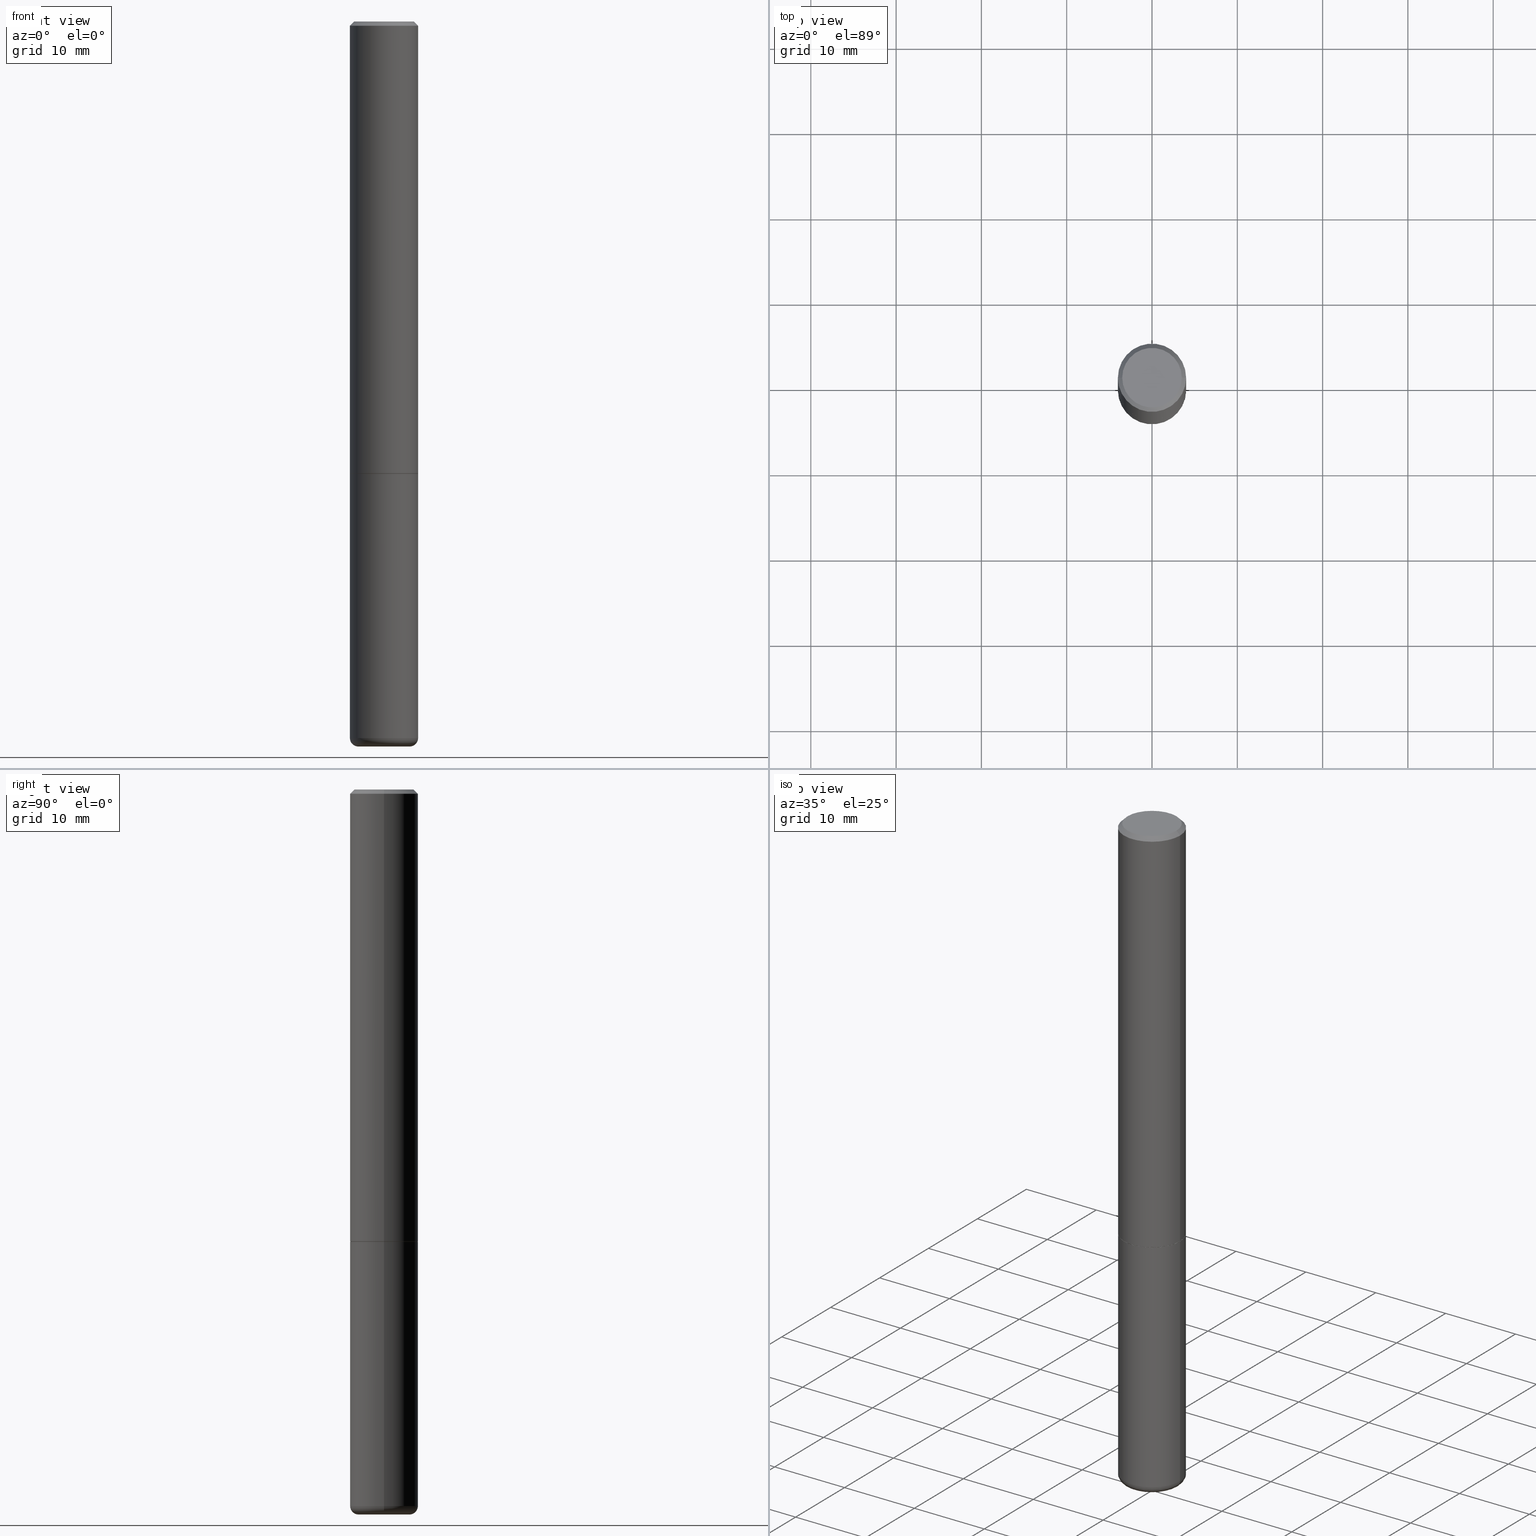
[diagram: canonical four-view strip — front | top / right | iso, engineering-drawing reading convention]
A machine part, canonical four-view strip (front | top / right | iso — engineering-drawing reading convention). The complete STEP part file that produces these views, byte-faithful:
ISO-10303-21;
HEADER;
FILE_DESCRIPTION (( 'STEP AP203' ),
    '1' );
FILE_NAME ('74391.STEP',
    '2024-03-06T15:10:48',
    ( '' ),
    ( '' ),
    'SwSTEP 2.0',
    'SolidWorks 2023',
    '' );
FILE_SCHEMA (( 'CONFIG_CONTROL_DESIGN' ));
ENDSEC;

DATA;
#1 = ADVANCED_FACE ( 'NONE', ( #29 ), #348, .T. ) ;
#2 = DIRECTION ( 'NONE',  ( -2.445468806185136597E-29, 3.491481338843145583E-15, 1.000000000000000000 ) ) ;
#3 = CONICAL_SURFACE ( 'NONE', #54, 0.1575000000000000289, 0.7853981633974481680 ) ;
#4 = COORDINATED_UNIVERSAL_TIME_OFFSET ( 5, 0, .BEHIND. ) ;
#5 = CARTESIAN_POINT ( 'NONE',  ( -0.1575000000000000289, 1.029986994958724182E-15, -0.02000000000000003511 ) ) ;
#6 = VECTOR ( 'NONE', #38, 39.37007874015748143 ) ;
#7 = APPROVAL_DATE_TIME ( #263, #326 ) ;
#8 = DIRECTION ( 'NONE',  ( -1.000000000000000000, 6.982962677686265922E-15, -4.876176775795935793E-29 ) ) ;
#9 = ADVANCED_FACE ( 'NONE', ( #256 ), #284, .T. ) ;
#10 = CARTESIAN_POINT ( 'NONE',  ( 9.601573681818600950E-16, 0.1374999999999997891, -3.797686405735721404E-16 ) ) ;
#11 = MECHANICAL_CONTEXT ( 'NONE', #385, 'mechanical' ) ;
#12 = CARTESIAN_POINT ( 'NONE',  ( 0.1575000000000000289, -1.150358061425879472E-15, -0.02000000000000003511 ) ) ;
#13 = DIRECTION ( 'NONE',  ( -2.445468806185136597E-29, 3.491481338843145583E-15, 1.000000000000000000 ) ) ;
#14 = COORDINATED_UNIVERSAL_TIME_OFFSET ( 5, 0, .BEHIND. ) ;
#15 = CARTESIAN_POINT ( 'NONE',  ( 0.1575000000000001954, -8.381999250160736190E-15, -2.085699999999999665 ) ) ;
#16 = APPLICATION_PROTOCOL_DEFINITION ( 'international standard', 'config_control_design', 1994, #385 ) ;
#17 = EDGE_CURVE ( 'NONE', #414, #34, #158, .T. ) ;
#18 = CC_DESIGN_APPROVAL ( #267, ( #135 ) ) ;
#19 = ORIENTED_EDGE ( 'NONE', *, *, #357, .F. ) ;
#20 = EDGE_CURVE ( 'NONE', #52, #154, #191, .T. ) ;
#21 = CARTESIAN_POINT ( 'NONE',  ( -4.906101647375532782E-45, 7.004612900788102525E-31, 2.006200870347193393E-16 ) ) ;
#22 = SHAPE_DEFINITION_REPRESENTATION ( #148, #319 ) ;
#23 = DIRECTION ( 'NONE',  ( -2.438088387897960049E-29, 3.491481338843145188E-15, 1.000000000000000000 ) ) ;
#24 = AXIS2_PLACEMENT_3D ( 'NONE', #292, #13, #132 ) ;
#25 = FACE_OUTER_BOUND ( 'NONE', #48, .T. ) ;
#26 = CIRCLE ( 'NONE', #69, 0.1565000000000000002 ) ;
#27 = VERTEX_POINT ( 'NONE', #64 ) ;
#28 = CARTESIAN_POINT ( 'NONE',  ( -0.1575000000000000011, -8.297071213903919899E-15, -2.086699999999999999 ) ) ;
#29 = FACE_OUTER_BOUND ( 'NONE', #384, .T. ) ;
#30 = ORIENTED_EDGE ( 'NONE', *, *, #62, .T. ) ;
#31 = LOCAL_TIME ( 10, 10, 48.00000000000000000, #334 ) ;
#32 = ORIENTED_EDGE ( 'NONE', *, *, #360, .F. ) ;
#33 = ADVANCED_FACE ( 'NONE', ( #72 ), #167, .T. ) ;
#34 = VERTEX_POINT ( 'NONE', #316 ) ;
#35 = DIRECTION ( 'NONE',  ( -6.982962677686266711E-15, -1.000000000000000000, 3.491481338843145583E-15 ) ) ;
#36 = CIRCLE ( 'NONE', #221, 0.1575000000000000011 ) ;
#37 = EDGE_CURVE ( 'NONE', #92, #336, #63, .T. ) ;
#38 = DIRECTION ( 'NONE',  ( -2.445468806185136877E-29, 3.491481338843145188E-15, 1.000000000000000000 ) ) ;
#39 = APPLICATION_PROTOCOL_DEFINITION ( 'international standard', 'config_control_design', 1994, #353 ) ;
#40 = LENGTH_MEASURE_WITH_UNIT ( LENGTH_MEASURE( 0.02539999999999999897 ), #229 );
#41 = CARTESIAN_POINT ( 'NONE',  ( -0.1575000000000000289, 1.029986994958724182E-15, -0.02000000000000003511 ) ) ;
#42 = PERSON_AND_ORGANIZATION_ROLE ( 'design_owner' ) ;
#43 = FACE_OUTER_BOUND ( 'NONE', #317, .T. ) ;
#44 = DIRECTION ( 'NONE',  ( 7.105427357601001859E-15, 1.000000000000000000, -3.491481338843145583E-15 ) ) ;
#45 = EDGE_CURVE ( 'NONE', #336, #34, #110, .T. ) ;
#46 = CARTESIAN_POINT ( 'NONE',  ( -0.1180999999999999966, -1.070752696475548667E-14, -3.307099999999999707 ) ) ;
#47 = AXIS2_PLACEMENT_3D ( 'NONE', #264, #170, #8 ) ;
#48 = EDGE_LOOP ( 'NONE', ( #160, #83, #415, #211 ) ) ;
#49 = APPROVAL_DATE_TIME ( #304, #320 ) ;
#50 = FACE_OUTER_BOUND ( 'NONE', #203, .T. ) ;
#51 = LINE ( 'NONE', #268, #181 ) ;
#52 = VERTEX_POINT ( 'NONE', #82 ) ;
#53 = ORIENTED_EDGE ( 'NONE', *, *, #45, .F. ) ;
#54 = AXIS2_PLACEMENT_3D ( 'NONE', #398, #397, #105 ) ;
#55 = FACE_OUTER_BOUND ( 'NONE', #300, .T. ) ;
#56 = APPROVAL_PERSON_ORGANIZATION ( #195, #267, #70 ) ;
#57 = CC_DESIGN_PERSON_AND_ORGANIZATION_ASSIGNMENT ( #332, #330, ( #159 ) ) ;
#58 = ORIENTED_EDGE ( 'NONE', *, *, #153, .T. ) ;
#59 = ORIENTED_EDGE ( 'NONE', *, *, #37, .F. ) ;
#60 = CARTESIAN_POINT ( 'NONE',  ( 0.000000000000000000, 0.000000000000000000, 0.000000000000000000 ) ) ;
#61 = CIRCLE ( 'NONE', #349, 0.1575000000000001954 ) ;
#62 = EDGE_CURVE ( 'NONE', #336, #92, #393, .T. ) ;
#63 = CIRCLE ( 'NONE', #416, 0.1180999999999999966 ) ;
#64 = CARTESIAN_POINT ( 'NONE',  ( -0.1374999999999997891, 9.950721815702925329E-16, 2.006200870347125108E-16 ) ) ;
#65 = VERTEX_POINT ( 'NONE', #412 ) ;
#66 = DIRECTION ( 'NONE',  ( 1.000000000000000000, -6.982962677686273021E-15, 0.000000000000000000 ) ) ;
#67 = DIRECTION ( 'NONE',  ( 1.000000000000000000, 0.000000000000000000, 0.000000000000000000 ) ) ;
#68 = ADVANCED_FACE ( 'NONE', ( #25 ), #78, .T. ) ;
#69 = AXIS2_PLACEMENT_3D ( 'NONE', #371, #136, #391 ) ;
#70 = APPROVAL_ROLE ( '' ) ;
#71 = LINE ( 'NONE', #287, #359 ) ;
#72 = FACE_OUTER_BOUND ( 'NONE', #217, .T. ) ;
#73 = DIRECTION ( 'NONE',  ( 1.000000000000000000, -6.982962677686265922E-15, 0.000000000000000000 ) ) ;
#74 = CYLINDRICAL_SURFACE ( 'NONE', #231, 0.1575000000000000844 ) ;
#75 = CARTESIAN_POINT ( 'NONE',  ( 0.1180999999999999966, -1.237136582792291392E-14, -3.307099999999999707 ) ) ;
#76 = CC_DESIGN_DATE_AND_TIME_ASSIGNMENT ( #100, #227, ( #288 ) ) ;
#77 = DIRECTION ( 'NONE',  ( -1.000000000000000000, 6.982962677686267499E-15, 0.000000000000000000 ) ) ;
#78 = CONICAL_SURFACE ( 'NONE', #408, 0.1565000000000000002, 0.7853981633975165577 ) ;
#79 = LINE ( 'NONE', #228, #314 ) ;
#80 = COORDINATED_UNIVERSAL_TIME_OFFSET ( 5, 0, .BEHIND. ) ;
#81 = AXIS2_PLACEMENT_3D ( 'NONE', #323, #395, #107 ) ;
#82 = CARTESIAN_POINT ( 'NONE',  ( -0.1575000000000001954, -2.556901318778844062E-15, -2.085699999999999665 ) ) ;
#83 = ORIENTED_EDGE ( 'NONE', *, *, #309, .T. ) ;
#84 = DIRECTION ( 'NONE',  ( -2.445468806185136597E-29, 3.491481338843145583E-15, 1.000000000000000000 ) ) ;
#85 = DIRECTION ( 'NONE',  ( -2.445468806185136597E-29, 3.491481338843145583E-15, 1.000000000000000000 ) ) ;
#86 = ORIENTED_EDGE ( 'NONE', *, *, #142, .T. ) ;
#87 = CARTESIAN_POINT ( 'NONE',  ( 8.183761359898558662E-29, -1.168424230043858487E-14, -3.346499999999999364 ) ) ;
#88 = EDGE_CURVE ( 'NONE', #208, #182, #164, .T. ) ;
#89 = ORIENTED_EDGE ( 'NONE', *, *, #88, .F. ) ;
#90 = AXIS2_PLACEMENT_3D ( 'NONE', #328, #234, #362 ) ;
#91 =( GEOMETRIC_REPRESENTATION_CONTEXT ( 3 ) GLOBAL_UNCERTAINTY_ASSIGNED_CONTEXT ( ( #346 ) ) GLOBAL_UNIT_ASSIGNED_CONTEXT ( ( #290, #318, #226 ) ) REPRESENTATION_CONTEXT ( 'NONE', 'WORKASPACE' ) );
#92 = VERTEX_POINT ( 'NONE', #372 ) ;
#93 = EDGE_CURVE ( 'NONE', #182, #208, #118, .T. ) ;
#94 = EDGE_LOOP ( 'NONE', ( #411, #386, #418, #250 ) ) ;
#95 = VERTEX_POINT ( 'NONE', #177 ) ;
#96 = APPROVAL_ROLE ( '' ) ;
#97 = PERSON_AND_ORGANIZATION_ROLE ( 'creator' ) ;
#98 = DATE_AND_TIME ( #259, #402 ) ;
#99 = EDGE_CURVE ( 'NONE', #34, #414, #36, .T. ) ;
#100 = DATE_AND_TIME ( #361, #238 ) ;
#101 = DIRECTION ( 'NONE',  ( 0.7071067811865473507, -7.319954787623254468E-15, -0.7071067811865475727 ) ) ;
#102 = AXIS2_PLACEMENT_3D ( 'NONE', #194, #324, #67 ) ;
#103 = CARTESIAN_POINT ( 'NONE',  ( 8.183761359898558662E-29, -1.168424230043858487E-14, -3.346499999999999364 ) ) ;
#104 = FACE_OUTER_BOUND ( 'NONE', #275, .T. ) ;
#105 = DIRECTION ( 'NONE',  ( -1.000000000000000000, 6.982962677686267499E-15, 0.000000000000000000 ) ) ;
#106 = ADVANCED_FACE ( 'NONE', ( #55 ), #295, .T. ) ;
#107 = DIRECTION ( 'NONE',  ( 1.000000000000000000, -6.982962677686267499E-15, 4.874794762600771100E-29 ) ) ;
#108 = CARTESIAN_POINT ( 'NONE',  ( 0.1374999999999997891, -1.046838268059731505E-15, 2.006200870347263405E-16 ) ) ;
#109 = DIRECTION ( 'NONE',  ( -0.7071067811865957564, 7.493145998870527710E-15, 0.7071067811864992780 ) ) ;
#110 = CIRCLE ( 'NONE', #306, 0.03939999999999978936 ) ;
#111 = DIRECTION ( 'NONE',  ( -0.7071067811865473507, 2.468850131082255483E-15, -0.7071067811865475727 ) ) ;
#112 = AXIS2_PLACEMENT_3D ( 'NONE', #10, #260, #265 ) ;
#113 = CARTESIAN_POINT ( 'NONE',  ( 8.087409888934865187E-29, -1.154667793568816566E-14, -3.307099999999999707 ) ) ;
#114 = CALENDAR_DATE ( 2024, 6, 3 ) ;
#115 = DIRECTION ( 'NONE',  ( -2.445468806185136877E-29, 3.491481338843145188E-15, 1.000000000000000000 ) ) ;
#116 = DIRECTION ( 'NONE',  ( -2.445468806185136597E-29, 3.491481338843145583E-15, 1.000000000000000000 ) ) ;
#117 = PERSON_AND_ORGANIZATION_ROLE ( 'creator' ) ;
#118 = CIRCLE ( 'NONE', #298, 0.1575000000000000289 ) ;
#119 = AXIS2_PLACEMENT_3D ( 'NONE', #175, #146, #301 ) ;
#120 = ORIENTED_EDGE ( 'NONE', *, *, #329, .T. ) ;
#121 = VECTOR ( 'NONE', #115, 39.37007874015748143 ) ;
#122 = CARTESIAN_POINT ( 'NONE',  ( 5.102959757866523939E-29, -7.285674109763990928E-15, -2.086699999999999999 ) ) ;
#123 = VERTEX_POINT ( 'NONE', #28 ) ;
#124 = CC_DESIGN_PERSON_AND_ORGANIZATION_ASSIGNMENT ( #202, #337, ( #135 ) ) ;
#125 = DIRECTION ( 'NONE',  ( 1.000000000000000000, -6.982962677686267499E-15, 0.000000000000000000 ) ) ;
#126 = ORIENTED_EDGE ( 'NONE', *, *, #224, .F. ) ;
#127 = DIRECTION ( 'NONE',  ( 1.000000000000000000, -6.982962677686273021E-15, 0.000000000000000000 ) ) ;
#128 = ORIENTED_EDGE ( 'NONE', *, *, #99, .T. ) ;
#129 = CC_DESIGN_SECURITY_CLASSIFICATION ( #159, ( #135 ) ) ;
#130 = ORIENTED_EDGE ( 'NONE', *, *, #369, .F. ) ;
#131 = ORIENTED_EDGE ( 'NONE', *, *, #142, .F. ) ;
#132 = DIRECTION ( 'NONE',  ( 1.000000000000000000, -6.982962677686265922E-15, 4.876176775795935232E-29 ) ) ;
#133 = DIRECTION ( 'NONE',  ( 1.000000000000000000, -6.982962677686265922E-15, 4.876176775795935232E-29 ) ) ;
#134 = AXIS2_PLACEMENT_3D ( 'NONE', #322, #266, #166 ) ;
#135 = PRODUCT_DEFINITION_FORMATION_WITH_SPECIFIED_SOURCE ( 'ANY', '', #201, .NOT_KNOWN. ) ;
#136 = DIRECTION ( 'NONE',  ( -2.445468806185136597E-29, 3.491481338843145583E-15, 1.000000000000000000 ) ) ;
#137 = CC_DESIGN_PERSON_AND_ORGANIZATION_ASSIGNMENT ( #257, #97, ( #288 ) ) ;
#138 = PLANE ( 'NONE',  #112 ) ;
#139 = FACE_OUTER_BOUND ( 'NONE', #345, .T. ) ;
#140 = CARTESIAN_POINT ( 'NONE',  ( 0.1575000000000000844, -1.099816621735587677E-15, 7.679978421878603638E-30 ) ) ;
#141 = AXIS2_PLACEMENT_3D ( 'NONE', #308, #350, #183 ) ;
#142 = EDGE_CURVE ( 'NONE', #52, #182, #71, .T. ) ;
#143 = CALENDAR_DATE ( 2024, 6, 3 ) ;
#144 = CARTESIAN_POINT ( 'NONE',  ( -0.1565000000000000002, -6.168376273951211931E-15, -2.086699999999999999 ) ) ;
#145 = DIRECTION ( 'NONE',  ( -2.445468806185136597E-29, 3.491481338843145583E-15, 1.000000000000000000 ) ) ;
#146 = DIRECTION ( 'NONE',  ( -2.445468806185136597E-29, 3.491481338843145583E-15, 1.000000000000000000 ) ) ;
#147 = CARTESIAN_POINT ( 'NONE',  ( 0.1565000000000000002, -8.378507768821891605E-15, -2.086699999999999999 ) ) ;
#148 = PRODUCT_DEFINITION_SHAPE ( 'NONE', 'NONE',  #288 ) ;
#149 = CIRCLE ( 'NONE', #270, 0.1575000000000000011 ) ;
#150 = CARTESIAN_POINT ( 'NONE',  ( 5.102959757866523939E-29, -7.285674109763990928E-15, -2.086699999999999999 ) ) ;
#151 = ORIENTED_EDGE ( 'NONE', *, *, #224, .T. ) ;
#152 = AXIS2_PLACEMENT_3D ( 'NONE', #389, #2, #161 ) ;
#153 = EDGE_CURVE ( 'NONE', #277, #208, #79, .T. ) ;
#154 = VERTEX_POINT ( 'NONE', #15 ) ;
#155 = CARTESIAN_POINT ( 'NONE',  ( 8.087409888934865187E-29, -1.154667793568816566E-14, -3.307099999999999707 ) ) ;
#156 = ORIENTED_EDGE ( 'NONE', *, *, #296, .T. ) ;
#157 = ORIENTED_EDGE ( 'NONE', *, *, #413, .F. ) ;
#158 = CIRCLE ( 'NONE', #262, 0.1575000000000000011 ) ;
#159 = SECURITY_CLASSIFICATION ( '', '', #239 ) ;
#160 = ORIENTED_EDGE ( 'NONE', *, *, #252, .T. ) ;
#161 = DIRECTION ( 'NONE',  ( 1.000000000000000000, -6.982962677686267499E-15, 4.876176775795936353E-29 ) ) ;
#162 = DIRECTION ( 'NONE',  ( -2.445468806185136597E-29, 3.491481338843145583E-15, 1.000000000000000000 ) ) ;
#163 = CC_DESIGN_PERSON_AND_ORGANIZATION_ASSIGNMENT ( #406, #117, ( #135 ) ) ;
#164 = CIRCLE ( 'NONE', #400, 0.1575000000000000289 ) ;
#165 = AXIS2_PLACEMENT_3D ( 'NONE', #21, #274, #410 ) ;
#166 = DIRECTION ( 'NONE',  ( -1.000000000000000000, 6.982962677686265922E-15, -4.876176775795935793E-29 ) ) ;
#167 = CYLINDRICAL_SURFACE ( 'NONE', #24, 0.1575000000000000011 ) ;
#168 = ADVANCED_FACE ( 'NONE', ( #139 ), #74, .T. ) ;
#169 = PERSON_AND_ORGANIZATION ( #401, #307 ) ;
#170 = DIRECTION ( 'NONE',  ( 2.438088387897960049E-29, -3.491481338843145188E-15, -1.000000000000000000 ) ) ;
#171 = CONICAL_SURFACE ( 'NONE', #119, 0.1565000000000000002, 0.7853981633975165577 ) ;
#172 = PLANE ( 'NONE',  #134 ) ;
#173 = DIRECTION ( 'NONE',  ( 1.000000000000000000, -6.982962677686271444E-15, 4.883557194083114583E-29 ) ) ;
#174 = DATE_TIME_ROLE ( 'classification_date' ) ;
#175 = CARTESIAN_POINT ( 'NONE',  ( 5.102959757866523939E-29, -7.285674109763990928E-15, -2.086699999999999999 ) ) ;
#176 = EDGE_LOOP ( 'NONE', ( #131, #185, #151, #341 ) ) ;
#177 = CARTESIAN_POINT ( 'NONE',  ( 0.1565000000000000002, -8.378507768821891605E-15, -2.086699999999999999 ) ) ;
#178 = APPROVAL_ROLE ( '' ) ;
#179 = EDGE_CURVE ( 'NONE', #154, #52, #61, .T. ) ;
#180 = CARTESIAN_POINT ( 'NONE',  ( 0.1575000000000000011, -1.099816621735586889E-15, 7.679978421878598033E-30 ) ) ;
#181 = VECTOR ( 'NONE', #109, 39.37007874015748143 ) ;
#182 = VERTEX_POINT ( 'NONE', #41 ) ;
#183 = DIRECTION ( 'NONE',  ( 1.000000000000000000, -6.982962677686265922E-15, 0.000000000000000000 ) ) ;
#184 = ORIENTED_EDGE ( 'NONE', *, *, #279, .T. ) ;
#185 = ORIENTED_EDGE ( 'NONE', *, *, #20, .T. ) ;
#186 = DIRECTION ( 'NONE',  ( 1.000000000000000000, -6.982962677686261977E-15, 0.000000000000000000 ) ) ;
#187 = DIRECTION ( 'NONE',  ( -2.445468806185136597E-29, 3.491481338843145583E-15, 1.000000000000000000 ) ) ;
#188 = CC_DESIGN_APPROVAL ( #320, ( #159 ) ) ;
#189 = ORIENTED_EDGE ( 'NONE', *, *, #357, .T. ) ;
#190 = ADVANCED_FACE ( 'NONE', ( #43 ), #392, .T. ) ;
#191 = CIRCLE ( 'NONE', #141, 0.1575000000000001954 ) ;
#192 = AXIS2_PLACEMENT_3D ( 'NONE', #363, #327, #77 ) ;
#193 = FACE_OUTER_BOUND ( 'NONE', #278, .T. ) ;
#194 = CARTESIAN_POINT ( 'NONE',  ( 0.000000000000000000, 0.000000000000000000, 0.000000000000000000 ) ) ;
#195 = PERSON_AND_ORGANIZATION ( #401, #307 ) ;
#196 = AXIS2_PLACEMENT_3D ( 'NONE', #60, #187, #133 ) ;
#197 = AXIS2_PLACEMENT_3D ( 'NONE', #150, #273, #271 ) ;
#198 = DIRECTION ( 'NONE',  ( -2.445468806185136877E-29, 3.491481338843145188E-15, 1.000000000000000000 ) ) ;
#199 = LINE ( 'NONE', #147, #276 ) ;
#200 = ADVANCED_FACE ( 'NONE', ( #193 ), #172, .F. ) ;
#201 = PRODUCT ( '74391', '74391', '', ( #11 ) ) ;
#202 = PERSON_AND_ORGANIZATION ( #401, #307 ) ;
#203 = EDGE_LOOP ( 'NONE', ( #310, #280, #156, #222 ) ) ;
#204 = CALENDAR_DATE ( 2024, 6, 3 ) ;
#205 = FACE_OUTER_BOUND ( 'NONE', #313, .T. ) ;
#206 = VECTOR ( 'NONE', #198, 39.37007874015748143 ) ;
#207 = LOCAL_TIME ( 10, 10, 48.00000000000000000, #14 ) ;
#208 = VERTEX_POINT ( 'NONE', #12 ) ;
#209 = CC_DESIGN_PERSON_AND_ORGANIZATION_ASSIGNMENT ( #286, #42, ( #201 ) ) ;
#210 = DIRECTION ( 'NONE',  ( 1.000000000000000000, -6.982962677686267499E-15, 0.000000000000000000 ) ) ;
#211 = ORIENTED_EDGE ( 'NONE', *, *, #296, .F. ) ;
#212 = DIRECTION ( 'NONE',  ( -2.445468806185136597E-29, 3.491481338843145583E-15, 1.000000000000000000 ) ) ;
#213 = CARTESIAN_POINT ( 'NONE',  ( 0.1180999999999999966, -1.250893019267333313E-14, -3.346499999999999364 ) ) ;
#214 = ORIENTED_EDGE ( 'NONE', *, *, #360, .T. ) ;
#215 = CARTESIAN_POINT ( 'NONE',  ( 4.890937612370281041E-31, -6.982962677686302702E-17, -0.02000000000000003511 ) ) ;
#216 = AXIS2_PLACEMENT_3D ( 'NONE', #331, #23, #335 ) ;
#217 = EDGE_LOOP ( 'NONE', ( #130, #248, #120, #32 ) ) ;
#218 = CARTESIAN_POINT ( 'NONE',  ( 4.890937612370281041E-31, -6.982962677686302702E-17, -0.02000000000000003511 ) ) ;
#219 = ORIENTED_EDGE ( 'NONE', *, *, #252, .F. ) ;
#220 = ORIENTED_EDGE ( 'NONE', *, *, #62, .F. ) ;
#221 = AXIS2_PLACEMENT_3D ( 'NONE', #303, #247, #379 ) ;
#222 = ORIENTED_EDGE ( 'NONE', *, *, #20, .F. ) ;
#223 = CC_DESIGN_APPROVAL ( #326, ( #288 ) ) ;
#224 = EDGE_CURVE ( 'NONE', #154, #208, #364, .T. ) ;
#225 = DIRECTION ( 'NONE',  ( -2.445468806185136597E-29, 3.491481338843145583E-15, 1.000000000000000000 ) ) ;
#226 =( NAMED_UNIT ( * ) SI_UNIT ( $, .STERADIAN. ) SOLID_ANGLE_UNIT ( ) );
#227 = DATE_TIME_ROLE ( 'creation_date' ) ;
#228 = CARTESIAN_POINT ( 'NONE',  ( 0.1575000000000000289, -1.150358061425879472E-15, -0.02000000000000003511 ) ) ;
#229 =( LENGTH_UNIT ( ) NAMED_UNIT ( * ) SI_UNIT ( $, .METRE. ) );
#230 = DIRECTION ( 'NONE',  ( 1.000000000000000000, -6.982962677686267499E-15, 4.876176775795936353E-29 ) ) ;
#231 = AXIS2_PLACEMENT_3D ( 'NONE', #356, #236, #230 ) ;
#232 = VECTOR ( 'NONE', #111, 39.37007874015748854 ) ;
#233 = CARTESIAN_POINT ( 'NONE',  ( 5.100514289060338336E-29, -7.282182628425147921E-15, -2.085699999999999665 ) ) ;
#234 = DIRECTION ( 'NONE',  ( -2.445468806185136597E-29, 3.491481338843145583E-15, 1.000000000000000000 ) ) ;
#235 = FACE_OUTER_BOUND ( 'NONE', #251, .T. ) ;
#236 = DIRECTION ( 'NONE',  ( -2.445468806185136597E-29, 3.491481338843145583E-15, 1.000000000000000000 ) ) ;
#237 = ADVANCED_FACE ( 'NONE', ( #261 ), #3, .T. ) ;
#238 = LOCAL_TIME ( 10, 10, 48.00000000000000000, #396 ) ;
#239 = SECURITY_CLASSIFICATION_LEVEL ( 'unclassified' ) ;
#240 = CARTESIAN_POINT ( 'NONE',  ( 8.087409888934865187E-29, -1.154667793568816566E-14, -3.307099999999999707 ) ) ;
#241 = DIMENSIONAL_EXPONENTS ( 1.000000000000000000, 0.000000000000000000, 0.000000000000000000, 0.000000000000000000, 0.000000000000000000, 0.000000000000000000, 0.000000000000000000 ) ;
#242 = PERSON_AND_ORGANIZATION ( #401, #307 ) ;
#243 = ORIENTED_EDGE ( 'NONE', *, *, #282, .F. ) ;
#244 = DIRECTION ( 'NONE',  ( 1.000000000000000000, -6.982962677686268288E-15, 0.000000000000000000 ) ) ;
#245 = DESIGN_CONTEXT ( 'detailed design', #353, 'design' ) ;
#246 = ORIENTED_EDGE ( 'NONE', *, *, #99, .F. ) ;
#247 = DIRECTION ( 'NONE',  ( -2.445468806185136597E-29, 3.491481338843145583E-15, 1.000000000000000000 ) ) ;
#248 = ORIENTED_EDGE ( 'NONE', *, *, #17, .T. ) ;
#249 = PRODUCT_RELATED_PRODUCT_CATEGORY ( 'detail', '', ( #201 ) ) ;
#250 = ORIENTED_EDGE ( 'NONE', *, *, #17, .F. ) ;
#251 = EDGE_LOOP ( 'NONE', ( #315, #19, #302, #253 ) ) ;
#252 = EDGE_CURVE ( 'NONE', #95, #380, #269, .T. ) ;
#253 = ORIENTED_EDGE ( 'NONE', *, *, #93, .T. ) ;
#254 = MANIFOLD_SOLID_BREP ( 'Body-Move/Copy2[1]', #294 ) ;
#255 = AXIS2_PLACEMENT_3D ( 'NONE', #87, #162, #127 ) ;
#256 = FACE_OUTER_BOUND ( 'NONE', #176, .T. ) ;
#257 = PERSON_AND_ORGANIZATION ( #401, #307 ) ;
#258 = DIRECTION ( 'NONE',  ( 1.000000000000000000, -6.982962677686271444E-15, 4.883557194083114583E-29 ) ) ;
#259 = CALENDAR_DATE ( 2024, 6, 3 ) ;
#260 = DIRECTION ( 'NONE',  ( 2.438088387897960049E-29, -3.491481338843145188E-15, -1.000000000000000000 ) ) ;
#261 = FACE_OUTER_BOUND ( 'NONE', #417, .T. ) ;
#262 = AXIS2_PLACEMENT_3D ( 'NONE', #113, #85, #186 ) ;
#263 = DATE_AND_TIME ( #143, #207 ) ;
#264 = CARTESIAN_POINT ( 'NONE',  ( 1.899479400543291086E-28, 3.797771773731543077E-15, -3.346499999999999808 ) ) ;
#265 = DIRECTION ( 'NONE',  ( -1.000000000000000000, 6.982962677686265922E-15, -4.876176775795935793E-29 ) ) ;
#266 = DIRECTION ( 'NONE',  ( 2.438088387897960049E-29, -3.491481338843145188E-15, -1.000000000000000000 ) ) ;
#267 = APPROVAL ( #358, 'UNSPECIFIED' ) ;
#268 = CARTESIAN_POINT ( 'NONE',  ( -0.1565000000000000002, -6.173674728299434333E-15, -2.086699999999999999 ) ) ;
#269 = CIRCLE ( 'NONE', #90, 0.1565000000000000002 ) ;
#270 = AXIS2_PLACEMENT_3D ( 'NONE', #122, #84, #244 ) ;
#271 = DIRECTION ( 'NONE',  ( 1.000000000000000000, -6.982962677686268288E-15, 0.000000000000000000 ) ) ;
#272 = APPROVAL_DATE_TIME ( #98, #267 ) ;
#273 = DIRECTION ( 'NONE',  ( -2.445468806185136597E-29, 3.491481338843145583E-15, 1.000000000000000000 ) ) ;
#274 = DIRECTION ( 'NONE',  ( -2.445468806185136597E-29, 3.491481338843145583E-15, 1.000000000000000000 ) ) ;
#275 = EDGE_LOOP ( 'NONE', ( #189, #339 ) ) ;
#276 = VECTOR ( 'NONE', #338, 39.37007874015748143 ) ;
#277 = VERTEX_POINT ( 'NONE', #108 ) ;
#278 = EDGE_LOOP ( 'NONE', ( #281, #214 ) ) ;
#279 = EDGE_CURVE ( 'NONE', #92, #414, #365, .T. ) ;
#280 = ORIENTED_EDGE ( 'NONE', *, *, #413, .T. ) ;
#281 = ORIENTED_EDGE ( 'NONE', *, *, #282, .T. ) ;
#282 = EDGE_CURVE ( 'NONE', #65, #123, #394, .T. ) ;
#283 = ORIENTED_EDGE ( 'NONE', *, *, #329, .F. ) ;
#284 = CYLINDRICAL_SURFACE ( 'NONE', #152, 0.1575000000000000844 ) ;
#285 = LINE ( 'NONE', #5, #232 ) ;
#286 = PERSON_AND_ORGANIZATION ( #401, #307 ) ;
#287 = CARTESIAN_POINT ( 'NONE',  ( -0.1575000000000000844, 1.119104808822158392E-15, -7.747322767151481189E-30 ) ) ;
#288 = PRODUCT_DEFINITION ( 'UNKNOWN', '', #135, #245 ) ;
#289 = CARTESIAN_POINT ( 'NONE',  ( -0.1575000000000000011, 1.119104808822157801E-15, -7.747322767151475583E-30 ) ) ;
#290 =( CONVERSION_BASED_UNIT ( 'INCH', #40 ) LENGTH_UNIT ( ) NAMED_UNIT ( #241 ) );
#291 = DIRECTION ( 'NONE',  ( -2.445468806185136877E-29, 3.491481338843145188E-15, 1.000000000000000000 ) ) ;
#292 = CARTESIAN_POINT ( 'NONE',  ( 0.000000000000000000, 0.000000000000000000, 0.000000000000000000 ) ) ;
#293 = APPROVAL_STATUS ( 'not_yet_approved' ) ;
#294 = CLOSED_SHELL ( 'NONE', ( #1, #106, #200, #33, #367, #190 ) ) ;
#295 = TOROIDAL_SURFACE ( 'NONE', #373, 0.1180999999999999966, 0.03939999999999978936 ) ;
#296 = EDGE_CURVE ( 'NONE', #95, #154, #199, .T. ) ;
#297 = DIRECTION ( 'NONE',  ( -1.000000000000000000, 7.105427357601014480E-15, 0.000000000000000000 ) ) ;
#298 = AXIS2_PLACEMENT_3D ( 'NONE', #218, #343, #210 ) ;
#299 = LOCAL_TIME ( 10, 10, 48.00000000000000000, #80 ) ;
#300 = EDGE_LOOP ( 'NONE', ( #30, #184, #246, #53 ) ) ;
#301 = DIRECTION ( 'NONE',  ( 1.000000000000000000, -6.982962677686267499E-15, 0.000000000000000000 ) ) ;
#302 = ORIENTED_EDGE ( 'NONE', *, *, #407, .T. ) ;
#303 = CARTESIAN_POINT ( 'NONE',  ( 8.087409888934865187E-29, -1.154667793568816566E-14, -3.307099999999999707 ) ) ;
#304 = DATE_AND_TIME ( #204, #299 ) ;
#305 = PLANE ( 'NONE',  #216 ) ;
#306 = AXIS2_PLACEMENT_3D ( 'NONE', #75, #35, #376 ) ;
#307 = ORGANIZATION ( 'UNSPECIFIED', 'UNSPECIFIED', '' ) ;
#308 = CARTESIAN_POINT ( 'NONE',  ( 5.100514289060338336E-29, -7.282182628425147921E-15, -2.085699999999999665 ) ) ;
#309 = EDGE_CURVE ( 'NONE', #380, #52, #51, .T. ) ;
#310 = ORIENTED_EDGE ( 'NONE', *, *, #309, .F. ) ;
#311 = CARTESIAN_POINT ( 'NONE',  ( 5.102959757866523939E-29, -7.285674109763990928E-15, -2.086699999999999999 ) ) ;
#312 = ORIENTED_EDGE ( 'NONE', *, *, #88, .T. ) ;
#313 = EDGE_LOOP ( 'NONE', ( #219, #157 ) ) ;
#314 = VECTOR ( 'NONE', #101, 39.37007874015748854 ) ;
#315 = ORIENTED_EDGE ( 'NONE', *, *, #153, .F. ) ;
#316 = CARTESIAN_POINT ( 'NONE',  ( 0.1574999999999998901, -1.264649455742375235E-14, -3.307099999999999707 ) ) ;
#317 = EDGE_LOOP ( 'NONE', ( #220, #59 ) ) ;
#318 =( NAMED_UNIT ( * ) PLANE_ANGLE_UNIT ( ) SI_UNIT ( $, .RADIAN. ) );
#319 = ADVANCED_BREP_SHAPE_REPRESENTATION ( '74391', ( #254, #405, #102 ), #91 ) ;
#320 = APPROVAL ( #368, 'UNSPECIFIED' ) ;
#321 = AXIS2_PLACEMENT_3D ( 'NONE', #240, #404, #173 ) ;
#322 = CARTESIAN_POINT ( 'NONE',  ( 5.102959757866523939E-29, -7.285674109763990928E-15, -2.086699999999999999 ) ) ;
#323 = CARTESIAN_POINT ( 'NONE',  ( -4.906101647375532782E-45, 7.004612900788102525E-31, 2.006200870347193393E-16 ) ) ;
#324 = DIRECTION ( 'NONE',  ( 0.000000000000000000, 0.000000000000000000, 1.000000000000000000 ) ) ;
#325 = DIRECTION ( 'NONE',  ( -2.445468806185136597E-29, 3.491481338843145583E-15, 1.000000000000000000 ) ) ;
#326 = APPROVAL ( #293, 'UNSPECIFIED' ) ;
#327 = DIRECTION ( 'NONE',  ( 2.445468806185136597E-29, -3.491481338843145583E-15, -1.000000000000000000 ) ) ;
#328 = CARTESIAN_POINT ( 'NONE',  ( 5.102959757866523939E-29, -7.285674109763990928E-15, -2.086699999999999999 ) ) ;
#329 = EDGE_CURVE ( 'NONE', #34, #65, #370, .T. ) ;
#330 = PERSON_AND_ORGANIZATION_ROLE ( 'classification_officer' ) ;
#331 = CARTESIAN_POINT ( 'NONE',  ( 5.102959757866523939E-29, -7.285674109763990928E-15, -2.086699999999999999 ) ) ;
#332 = PERSON_AND_ORGANIZATION ( #401, #307 ) ;
#333 = APPROVAL_PERSON_ORGANIZATION ( #169, #326, #96 ) ;
#334 = COORDINATED_UNIVERSAL_TIME_OFFSET ( 5, 0, .BEHIND. ) ;
#335 = DIRECTION ( 'NONE',  ( 1.000000000000000000, -6.982962677686265922E-15, 4.876176775795935793E-29 ) ) ;
#336 = VERTEX_POINT ( 'NONE', #213 ) ;
#337 = PERSON_AND_ORGANIZATION_ROLE ( 'design_supplier' ) ;
#338 = DIRECTION ( 'NONE',  ( 0.7071067811865957564, -2.468850131082761932E-15, 0.7071067811864992780 ) ) ;
#339 = ORIENTED_EDGE ( 'NONE', *, *, #375, .T. ) ;
#340 = ADVANCED_FACE ( 'NONE', ( #205 ), #305, .F. ) ;
#341 = ORIENTED_EDGE ( 'NONE', *, *, #93, .F. ) ;
#342 = CLOSED_SHELL ( 'NONE', ( #68, #168, #237, #390, #9, #354, #340, #381 ) ) ;
#343 = DIRECTION ( 'NONE',  ( -2.445468806185136597E-29, 3.491481338843145583E-15, 1.000000000000000000 ) ) ;
#344 = CIRCLE ( 'NONE', #165, 0.1374999999999997891 ) ;
#345 = EDGE_LOOP ( 'NONE', ( #347, #86, #89, #126 ) ) ;
#346 = UNCERTAINTY_MEASURE_WITH_UNIT (LENGTH_MEASURE( 1.000000000000000082E-05 ), #290, 'distance_accuracy_value', 'NONE');
#347 = ORIENTED_EDGE ( 'NONE', *, *, #179, .T. ) ;
#348 = CYLINDRICAL_SURFACE ( 'NONE', #196, 0.1575000000000000011 ) ;
#349 = AXIS2_PLACEMENT_3D ( 'NONE', #233, #325, #73 ) ;
#350 = DIRECTION ( 'NONE',  ( -2.445468806185136597E-29, 3.491481338843145583E-15, 1.000000000000000000 ) ) ;
#351 = APPROVAL_PERSON_ORGANIZATION ( #242, #320, #178 ) ;
#352 = ORIENTED_EDGE ( 'NONE', *, *, #375, .F. ) ;
#353 = APPLICATION_CONTEXT ( 'configuration controlled 3d designs of mechanical parts and assemblies' ) ;
#354 = ADVANCED_FACE ( 'NONE', ( #50 ), #171, .T. ) ;
#355 = CARTESIAN_POINT ( 'NONE',  ( -0.1574999999999998901, -1.042757312686600805E-14, -3.307099999999999707 ) ) ;
#356 = CARTESIAN_POINT ( 'NONE',  ( 0.000000000000000000, 0.000000000000000000, 0.000000000000000000 ) ) ;
#357 = EDGE_CURVE ( 'NONE', #27, #277, #344, .T. ) ;
#358 = APPROVAL_STATUS ( 'not_yet_approved' ) ;
#359 = VECTOR ( 'NONE', #291, 39.37007874015748143 ) ;
#360 = EDGE_CURVE ( 'NONE', #123, #65, #149, .T. ) ;
#361 = CALENDAR_DATE ( 2024, 6, 3 ) ;
#362 = DIRECTION ( 'NONE',  ( 1.000000000000000000, -6.982962677686267499E-15, 0.000000000000000000 ) ) ;
#363 = CARTESIAN_POINT ( 'NONE',  ( 4.890937612370281041E-31, -6.982962677686302702E-17, -0.02000000000000003511 ) ) ;
#364 = LINE ( 'NONE', #140, #206 ) ;
#365 = CIRCLE ( 'NONE', #366, 0.03939999999999978936 ) ;
#366 = AXIS2_PLACEMENT_3D ( 'NONE', #46, #44, #297 ) ;
#367 = ADVANCED_FACE ( 'NONE', ( #377 ), #388, .T. ) ;
#368 = APPROVAL_STATUS ( 'not_yet_approved' ) ;
#369 = EDGE_CURVE ( 'NONE', #414, #123, #399, .T. ) ;
#370 = LINE ( 'NONE', #180, #121 ) ;
#371 = CARTESIAN_POINT ( 'NONE',  ( 5.102959757866523939E-29, -7.285674109763990928E-15, -2.086699999999999999 ) ) ;
#372 = CARTESIAN_POINT ( 'NONE',  ( -0.1180999999999999966, -1.063633222818595776E-14, -3.346499999999999364 ) ) ;
#373 = AXIS2_PLACEMENT_3D ( 'NONE', #155, #145, #258 ) ;
#374 = DATE_AND_TIME ( #114, #31 ) ;
#375 = EDGE_CURVE ( 'NONE', #277, #27, #409, .T. ) ;
#376 = DIRECTION ( 'NONE',  ( 1.000000000000000000, -6.982962677686266711E-15, 0.000000000000000000 ) ) ;
#377 = FACE_OUTER_BOUND ( 'NONE', #94, .T. ) ;
#378 = ORIENTED_EDGE ( 'NONE', *, *, #369, .T. ) ;
#379 = DIRECTION ( 'NONE',  ( 1.000000000000000000, -6.982962677686261977E-15, 0.000000000000000000 ) ) ;
#380 = VERTEX_POINT ( 'NONE', #144 ) ;
#381 = ADVANCED_FACE ( 'NONE', ( #104 ), #138, .F. ) ;
#382 = DIRECTION ( 'NONE',  ( 1.000000000000000000, -6.982962677686267499E-15, 0.000000000000000000 ) ) ;
#383 = CONICAL_SURFACE ( 'NONE', #192, 0.1575000000000000289, 0.7853981633974481680 ) ;
#384 = EDGE_LOOP ( 'NONE', ( #128, #378, #243, #283 ) ) ;
#385 = APPLICATION_CONTEXT ( 'configuration controlled 3d designs of mechanical parts and assemblies' ) ;
#386 = ORIENTED_EDGE ( 'NONE', *, *, #37, .T. ) ;
#387 = ORIENTED_EDGE ( 'NONE', *, *, #407, .F. ) ;
#388 = TOROIDAL_SURFACE ( 'NONE', #321, 0.1180999999999999966, 0.03939999999999978936 ) ;
#389 = CARTESIAN_POINT ( 'NONE',  ( 0.000000000000000000, 0.000000000000000000, 0.000000000000000000 ) ) ;
#390 = ADVANCED_FACE ( 'NONE', ( #235 ), #383, .T. ) ;
#391 = DIRECTION ( 'NONE',  ( 1.000000000000000000, -6.982962677686267499E-15, 0.000000000000000000 ) ) ;
#392 = PLANE ( 'NONE',  #47 ) ;
#393 = CIRCLE ( 'NONE', #255, 0.1180999999999999966 ) ;
#394 = CIRCLE ( 'NONE', #197, 0.1575000000000000011 ) ;
#395 = DIRECTION ( 'NONE',  ( -2.445468806185136597E-29, 3.491481338843145583E-15, 1.000000000000000000 ) ) ;
#396 = COORDINATED_UNIVERSAL_TIME_OFFSET ( 5, 0, .BEHIND. ) ;
#397 = DIRECTION ( 'NONE',  ( 2.445468806185136597E-29, -3.491481338843145583E-15, -1.000000000000000000 ) ) ;
#398 = CARTESIAN_POINT ( 'NONE',  ( 4.890937612370281041E-31, -6.982962677686302702E-17, -0.02000000000000003511 ) ) ;
#399 = LINE ( 'NONE', #289, #6 ) ;
#400 = AXIS2_PLACEMENT_3D ( 'NONE', #215, #116, #382 ) ;
#401 = PERSON ( 'UNSPECIFIED', 'UNSPECIFIED', 'UNSPECIFIED', ('UNSPECIFIED'), ('UNSPECIFIED'), ('UNSPECIFIED') ) ;
#402 = LOCAL_TIME ( 10, 10, 48.00000000000000000, #4 ) ;
#403 = CC_DESIGN_DATE_AND_TIME_ASSIGNMENT ( #374, #174, ( #159 ) ) ;
#404 = DIRECTION ( 'NONE',  ( -2.445468806185136597E-29, 3.491481338843145583E-15, 1.000000000000000000 ) ) ;
#405 = MANIFOLD_SOLID_BREP ( 'Body-Move/Copy2[2]', #342 ) ;
#406 = PERSON_AND_ORGANIZATION ( #401, #307 ) ;
#407 = EDGE_CURVE ( 'NONE', #27, #182, #285, .T. ) ;
#408 = AXIS2_PLACEMENT_3D ( 'NONE', #311, #212, #125 ) ;
#409 = CIRCLE ( 'NONE', #81, 0.1374999999999997891 ) ;
#410 = DIRECTION ( 'NONE',  ( 1.000000000000000000, -6.982962677686267499E-15, 4.874794762600771100E-29 ) ) ;
#411 = ORIENTED_EDGE ( 'NONE', *, *, #279, .F. ) ;
#412 = CARTESIAN_POINT ( 'NONE',  ( 0.1575000000000000011, -8.385490731499577619E-15, -2.086699999999999999 ) ) ;
#413 = EDGE_CURVE ( 'NONE', #380, #95, #26, .T. ) ;
#414 = VERTEX_POINT ( 'NONE', #355 ) ;
#415 = ORIENTED_EDGE ( 'NONE', *, *, #179, .F. ) ;
#416 = AXIS2_PLACEMENT_3D ( 'NONE', #103, #225, #66 ) ;
#417 = EDGE_LOOP ( 'NONE', ( #352, #58, #312, #387 ) ) ;
#418 = ORIENTED_EDGE ( 'NONE', *, *, #45, .T. ) ;
ENDSEC;
END-ISO-10303-21;
